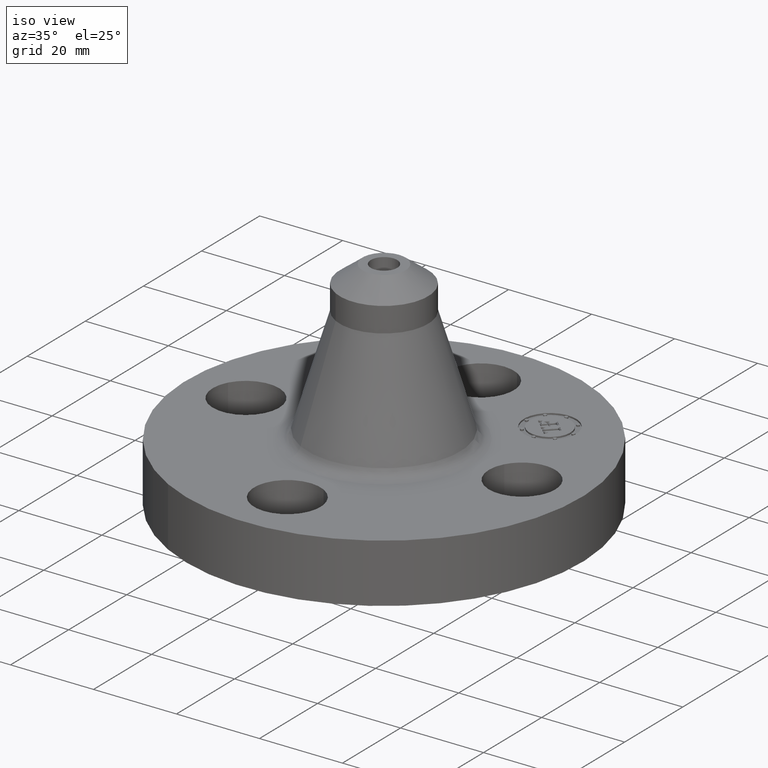
[diagram: clean part render]
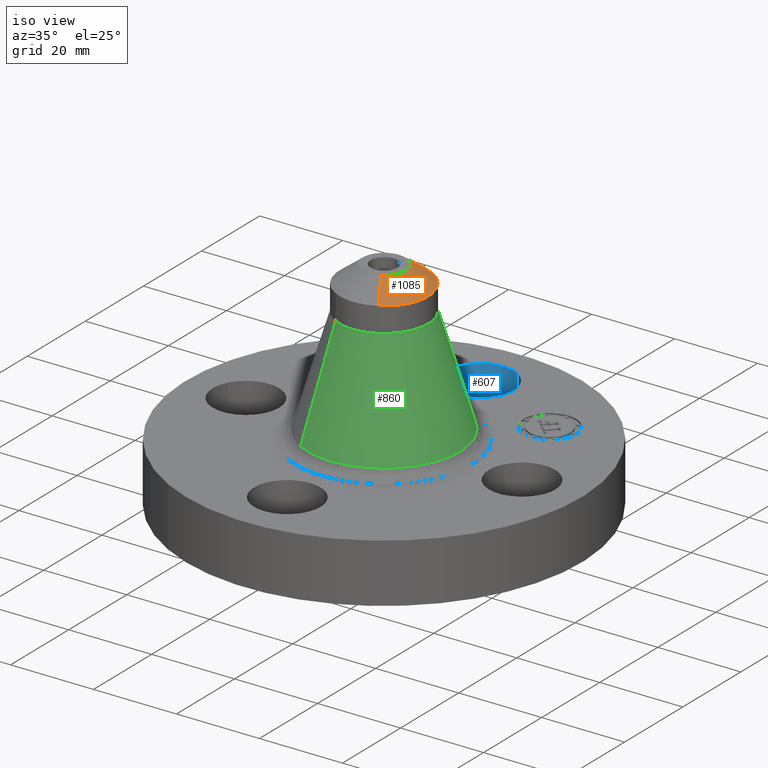
[diagram: same view with three faces highlighted in distinct colors, each labeled with its STEP entity id]
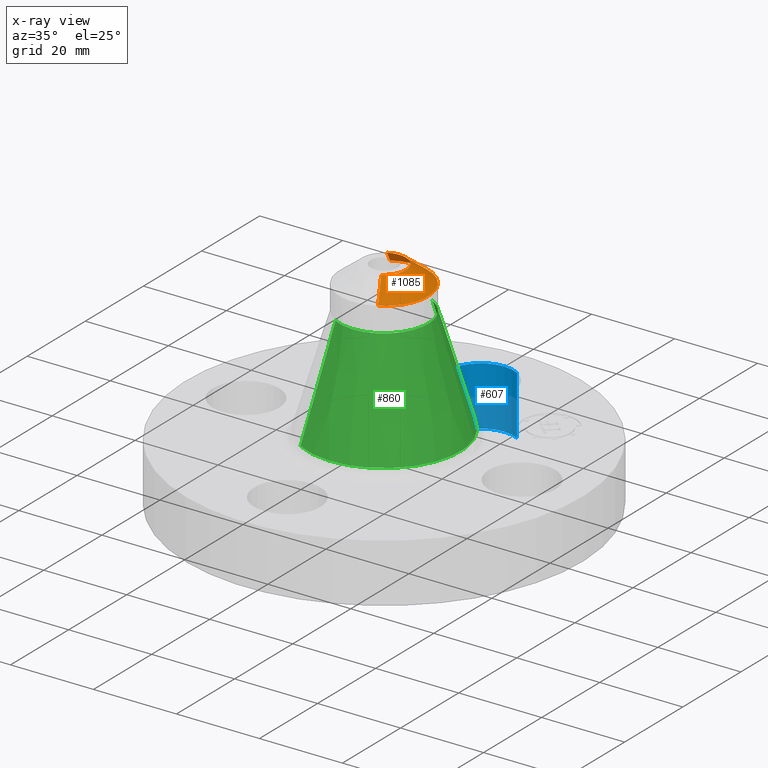
[diagram: x-ray of the same camera — body ghosted, the three highlighted faces saturated]
A machine part, iso view with three faces highlighted in distinct colors.
The next image is the same camera in x-ray (body ghosted, the three faces saturated) — at least one of them is partly hidden behind the body in this view.
Their STEP definitions:

[orange] entity #1085 — the highlighted conical surface has half-angle 52.5 deg.
#778=AXIS2_PLACEMENT_3D('Circle Axis2P3D',#776,#777,$) ;
#1050=AXIS2_PLACEMENT_3D('Cone Axis2P3D',#1047,#1048,#1049) ;
#1068=AXIS2_PLACEMENT_3D('Circle Axis2P3D',#1066,#1067,$) ;
#1075=AXIS2_PLACEMENT_3D('Circle Axis2P3D',#1073,#1074,$) ;
#776=CARTESIAN_POINT('Axis2P3D Location',(-1.28117551563E-011,-2.58254310325E-011,2.06000000001)) ;
#780=CARTESIAN_POINT('Vertex',(0.0981576602743,-0.179676391924,2.06000000001)) ;
#782=CARTESIAN_POINT('Vertex',(-0.0981576602743,0.179676391924,2.06000000001)) ;
#1047=CARTESIAN_POINT('Axis2P3D Location',(0.,0.,2.06000000001)) ;
#1052=CARTESIAN_POINT('Line Origine',(-0.149758193245,0.274130533961,1.97741265671)) ;
#1056=CARTESIAN_POINT('Vertex',(-0.201358726215,0.368584675995,1.8948253134)) ;
#1059=CARTESIAN_POINT('Line Origine',(0.149758193245,-0.274130533961,1.97741265671)) ;
#1063=CARTESIAN_POINT('Vertex',(0.201358726215,-0.368584675995,1.8948253134)) ;
#1066=CARTESIAN_POINT('Axis2P3D Location',(0.,0.,1.89482531341)) ;
#1070=CARTESIAN_POINT('Vertex',(0.201358726215,0.368584675996,1.8948253134)) ;
#1073=CARTESIAN_POINT('Axis2P3D Location',(0.,0.,1.89482531341)) ;
#777=DIRECTION('Axis2P3D Direction',(0.,0.,-0.0393700787402)) ;
#1048=DIRECTION('Axis2P3D Direction',(-0.,-0.,-0.0393700787402)) ;
#1049=DIRECTION('Axis2P3D XDirection',(-0.0188750212049,0.0345504945626,0.)) ;
#1053=DIRECTION('Vector Direction',(-0.014974561121,0.02741075027,-0.023966985394)) ;
#1060=DIRECTION('Vector Direction',(0.014974561121,-0.02741075027,-0.023966985394)) ;
#1067=DIRECTION('Axis2P3D Direction',(-0.,0.,-0.0393700787402)) ;
#1074=DIRECTION('Axis2P3D Direction',(-0.,0.,-0.0393700787402)) ;
#1054=VECTOR('Line Direction',#1053,0.0393700787402) ;
#1061=VECTOR('Line Direction',#1060,0.0393700787402) ;
#1079=ORIENTED_EDGE('',*,*,#1058,.F.) ;
#1080=ORIENTED_EDGE('',*,*,#784,.F.) ;
#1081=ORIENTED_EDGE('',*,*,#1065,.T.) ;
#1082=ORIENTED_EDGE('',*,*,#1072,.T.) ;
#1083=ORIENTED_EDGE('',*,*,#1077,.F.) ;
#1085=ADVANCED_FACE('PartBody',(#1084),#1051,.T.) ;
#779=CIRCLE('generated circle',#778,0.204740157501) ;
#1069=CIRCLE('generated circle',#1068,0.420000000005) ;
#1076=CIRCLE('generated circle',#1075,0.420000000005) ;
#1051=CONICAL_SURFACE('Cone',#1050,0.204740157481,0.916297857297) ;
#784=EDGE_CURVE('',#781,#783,#779,.F.) ;
#1058=EDGE_CURVE('',#783,#1057,#1055,.T.) ;
#1065=EDGE_CURVE('',#781,#1064,#1062,.T.) ;
#1072=EDGE_CURVE('',#1064,#1071,#1069,.F.) ;
#1077=EDGE_CURVE('',#1057,#1071,#1076,.T.) ;
#1078=EDGE_LOOP('',(#1079,#1080,#1081,#1082,#1083)) ;
#1084=FACE_OUTER_BOUND('',#1078,.T.) ;
#1055=LINE('Line',#1052,#1054) ;
#1062=LINE('Line',#1059,#1061) ;
#781=VERTEX_POINT('',#780) ;
#783=VERTEX_POINT('',#782) ;
#1057=VERTEX_POINT('',#1056) ;
#1064=VERTEX_POINT('',#1063) ;
#1071=VERTEX_POINT('',#1070) ;

[blue] entity #607 — the highlighted cylindrical surface (partial cylindrical patch) has radius 8.001 mm, axis along (0, 0, -1).
#219=AXIS2_PLACEMENT_3D('Circle Axis2P3D',#217,#218,$) ;
#335=AXIS2_PLACEMENT_3D('Circle Axis2P3D',#333,#334,$) ;
#589=AXIS2_PLACEMENT_3D('Cylinder Axis2P3D',#586,#587,#588) ;
#217=CARTESIAN_POINT('Axis2P3D Location',(4.36654037512E-011,1.31,0.)) ;
#221=CARTESIAN_POINT('Vertex',(-0.151019044675,1.03356149303,0.)) ;
#223=CARTESIAN_POINT('Vertex',(0.151019044675,1.58643850703,0.)) ;
#328=CARTESIAN_POINT('Vertex',(0.151019044675,1.58643850698,0.560000000002)) ;
#330=CARTESIAN_POINT('Vertex',(-0.151019044661,1.03356149301,0.559999999987)) ;
#333=CARTESIAN_POINT('Axis2P3D Location',(1.28118338336E-011,1.30999999997,0.560000000002)) ;
#586=CARTESIAN_POINT('Axis2P3D Location',(-2.40643096033E-016,1.31000000001,0.556062992128)) ;
#591=CARTESIAN_POINT('Line Origine',(-0.151019044661,1.03356149301,0.280000000001)) ;
#596=CARTESIAN_POINT('Line Origine',(0.151019044661,1.58643850701,0.280000000001)) ;
#218=DIRECTION('Axis2P3D Direction',(0.,0.,-0.0393700787402)) ;
#334=DIRECTION('Axis2P3D Direction',(0.,0.,-0.0393700787402)) ;
#587=DIRECTION('Axis2P3D Direction',(0.,0.,-0.0393700787402)) ;
#588=DIRECTION('Axis2P3D XDirection',(-0.0188750212049,-0.0345504945626,0.)) ;
#592=DIRECTION('Vector Direction',(0.,0.,-0.0393700787402)) ;
#597=DIRECTION('Vector Direction',(0.,0.,-0.0393700787402)) ;
#593=VECTOR('Line Direction',#592,0.0393700787402) ;
#598=VECTOR('Line Direction',#597,0.0393700787402) ;
#602=ORIENTED_EDGE('',*,*,#595,.F.) ;
#603=ORIENTED_EDGE('',*,*,#225,.T.) ;
#604=ORIENTED_EDGE('',*,*,#600,.T.) ;
#605=ORIENTED_EDGE('',*,*,#337,.F.) ;
#607=ADVANCED_FACE('PartBody',(#606),#590,.F.) ;
#220=CIRCLE('generated circle',#219,0.315000000013) ;
#336=CIRCLE('generated circle',#335,0.315000000013) ;
#590=CYLINDRICAL_SURFACE('generated cylinder',#589,0.315000000001) ;
#225=EDGE_CURVE('',#222,#224,#220,.T.) ;
#337=EDGE_CURVE('',#331,#329,#336,.T.) ;
#595=EDGE_CURVE('',#222,#331,#594,.F.) ;
#600=EDGE_CURVE('',#224,#329,#599,.F.) ;
#601=EDGE_LOOP('',(#602,#603,#604,#605)) ;
#606=FACE_OUTER_BOUND('',#601,.T.) ;
#594=LINE('Line',#591,#593) ;
#599=LINE('Line',#596,#598) ;
#222=VERTEX_POINT('',#221) ;
#224=VERTEX_POINT('',#223) ;
#329=VERTEX_POINT('',#328) ;
#331=VERTEX_POINT('',#330) ;

[green] entity #860 — the highlighted conical surface has half-angle 16.719 deg.
#679=AXIS2_PLACEMENT_3D('Circle Axis2P3D',#677,#678,$) ;
#847=AXIS2_PLACEMENT_3D('Cone Axis2P3D',#844,#845,#846) ;
#851=AXIS2_PLACEMENT_3D('Circle Axis2P3D',#849,#850,$) ;
#643=CARTESIAN_POINT('Vertex',(-0.34725942797,-0.635654119147,0.645478086066)) ;
#650=CARTESIAN_POINT('Vertex',(0.34725942797,0.635654119147,0.645478086066)) ;
#677=CARTESIAN_POINT('Axis2P3D Location',(0.,0.,0.645478086066)) ;
#811=CARTESIAN_POINT('Line Origine',(-0.274309077092,-0.502119397571,1.15204146352)) ;
#815=CARTESIAN_POINT('Vertex',(-0.201358726215,-0.368584675996,1.65860484097)) ;
#822=CARTESIAN_POINT('Vertex',(0.201358726215,0.368584675996,1.65860484097)) ;
#825=CARTESIAN_POINT('Line Origine',(0.274309077092,0.502119397571,1.15204146352)) ;
#844=CARTESIAN_POINT('Axis2P3D Location',(0.,0.,1.65860484097)) ;
#849=CARTESIAN_POINT('Axis2P3D Location',(0.,0.,1.65860484097)) ;
#678=DIRECTION('Axis2P3D Direction',(-0.,0.,-0.0393700787402)) ;
#812=DIRECTION('Vector Direction',(-0.00543001547996,-0.00993957666477,-0.0377057402476)) ;
#826=DIRECTION('Vector Direction',(0.00543001547996,0.00993957666477,-0.0377057402476)) ;
#845=DIRECTION('Axis2P3D Direction',(0.,0.,-0.0393700787402)) ;
#846=DIRECTION('Axis2P3D XDirection',(0.0188750212049,0.0345504945626,0.)) ;
#850=DIRECTION('Axis2P3D Direction',(-0.,0.,-0.0393700787402)) ;
#813=VECTOR('Line Direction',#812,0.0393700787402) ;
#827=VECTOR('Line Direction',#826,0.0393700787402) ;
#855=ORIENTED_EDGE('',*,*,#681,.F.) ;
#856=ORIENTED_EDGE('',*,*,#829,.T.) ;
#857=ORIENTED_EDGE('',*,*,#853,.T.) ;
#858=ORIENTED_EDGE('',*,*,#817,.F.) ;
#860=ADVANCED_FACE('PartBody',(#859),#848,.T.) ;
#680=CIRCLE('generated circle',#679,0.724324008647) ;
#852=CIRCLE('generated circle',#851,0.420000000002) ;
#848=CONICAL_SURFACE('Cone',#847,0.420000000002,0.291806281787) ;
#681=EDGE_CURVE('',#651,#644,#680,.T.) ;
#817=EDGE_CURVE('',#644,#816,#814,.F.) ;
#829=EDGE_CURVE('',#651,#823,#828,.F.) ;
#853=EDGE_CURVE('',#823,#816,#852,.T.) ;
#854=EDGE_LOOP('',(#855,#856,#857,#858)) ;
#859=FACE_OUTER_BOUND('',#854,.T.) ;
#814=LINE('Line',#811,#813) ;
#828=LINE('Line',#825,#827) ;
#644=VERTEX_POINT('',#643) ;
#651=VERTEX_POINT('',#650) ;
#816=VERTEX_POINT('',#815) ;
#823=VERTEX_POINT('',#822) ;